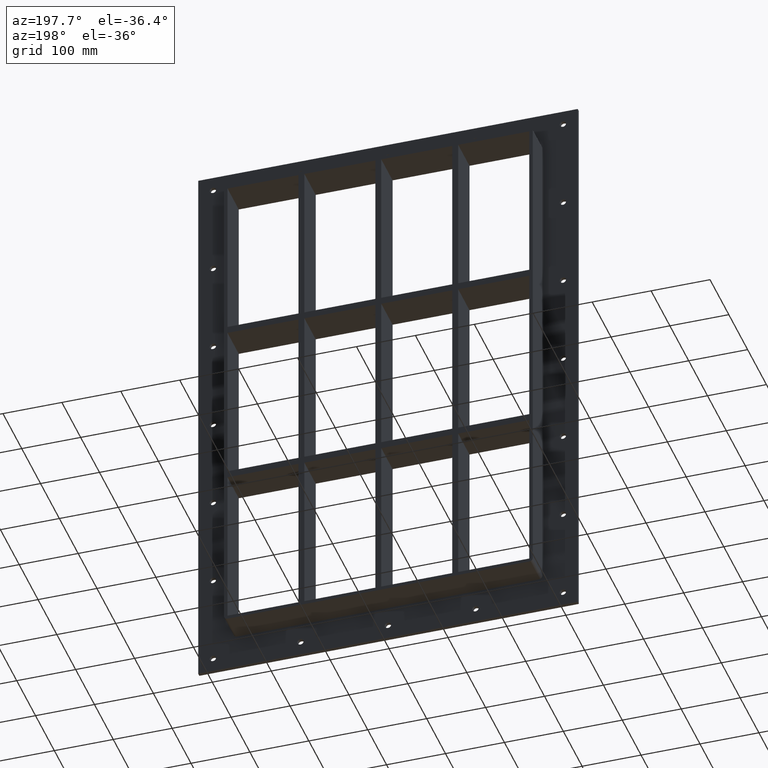
[diagram: clean part render]
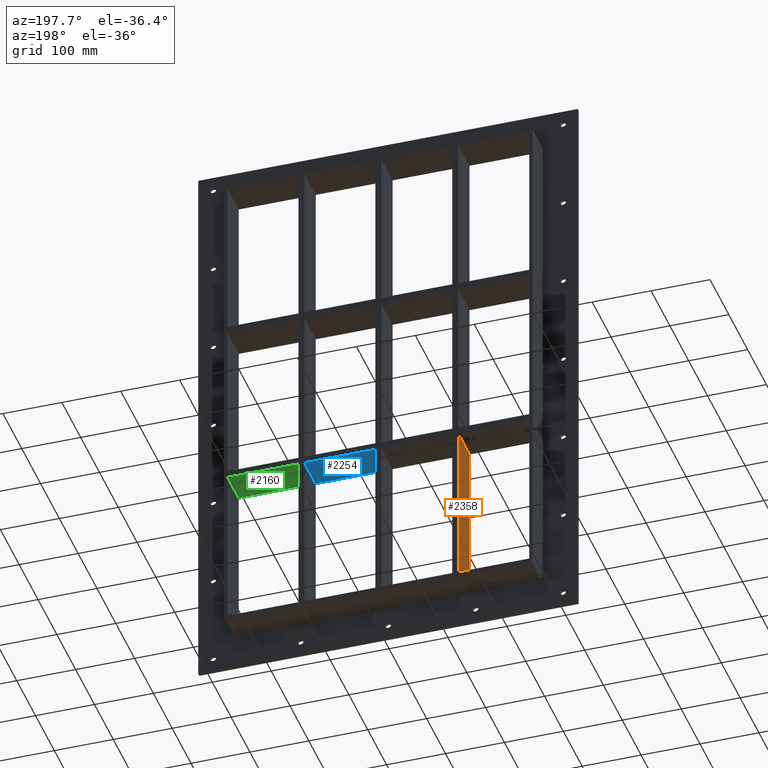
[diagram: same view with three faces highlighted in distinct colors, each labeled with its STEP entity id]
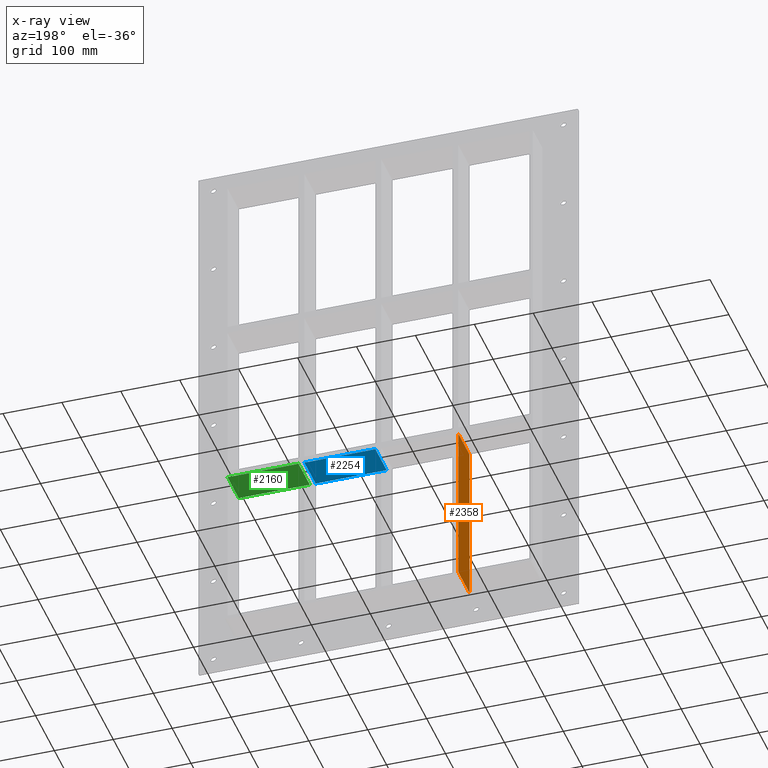
[diagram: x-ray of the same camera — body ghosted, the three highlighted faces saturated]
A machine part, auxiliary view with three faces highlighted in distinct colors.
The next image is the same camera in x-ray (body ghosted, the three faces saturated) — at least one of them is partly hidden behind the body in this view.
Their STEP definitions:

[orange] entity #2358 — the highlighted planar face has unit normal (-1, 0, 0).
#1462=CARTESIAN_POINT('',(-135.50000000000205,57.0,-429.00000000000006));
#1463=VERTEX_POINT('',#1462);
#1470=CARTESIAN_POINT('',(-135.5000000000021,57.0,-151.00000000001017));
#1471=VERTEX_POINT('',#1470);
#1472=CARTESIAN_POINT('',(-135.50000000000205,57.0,-429.00000000000006));
#1473=DIRECTION('',(0.0,0.0,1.0));
#1474=VECTOR('',#1473,277.99999999998988);
#1475=LINE('',#1472,#1474);
#1476=EDGE_CURVE('',#1463,#1471,#1475,.T.);
#2109=CARTESIAN_POINT('',(-135.5000000000021,-3.0,-151.00000000001017));
#2110=VERTEX_POINT('',#2109);
#2119=CARTESIAN_POINT('',(-135.50000000000205,-3.0,-429.00000000000006));
#2120=VERTEX_POINT('',#2119);
#2121=CARTESIAN_POINT('',(-135.50000000000205,-3.0,-429.00000000000006));
#2122=DIRECTION('',(0.0,0.0,1.0));
#2123=VECTOR('',#2122,277.99999999998988);
#2124=LINE('',#2121,#2123);
#2125=EDGE_CURVE('',#2120,#2110,#2124,.T.);
#2260=CARTESIAN_POINT('',(-135.50000000000207,-3.0,-151.00000000001017));
#2261=DIRECTION('',(0.0,1.0,0.0));
#2262=VECTOR('',#2261,60.0);
#2263=LINE('',#2260,#2262);
#2264=EDGE_CURVE('',#2110,#1471,#2263,.T.);
#2342=CARTESIAN_POINT('',(-135.50000000000205,-3.0,-429.00000000000006));
#2343=DIRECTION('',(-1.0,0.0,0.0));
#2344=DIRECTION('',(0.0,0.0,1.0));
#2345=AXIS2_PLACEMENT_3D('',#2342,#2343,#2344);
#2346=PLANE('',#2345);
#2347=ORIENTED_EDGE('',*,*,#2264,.T.);
#2348=ORIENTED_EDGE('',*,*,#1476,.F.);
#2349=CARTESIAN_POINT('',(-135.50000000000205,-3.0,-429.00000000000006));
#2350=DIRECTION('',(0.0,1.0,0.0));
#2351=VECTOR('',#2350,60.000000000000007);
#2352=LINE('',#2349,#2351);
#2353=EDGE_CURVE('',#2120,#1463,#2352,.T.);
#2354=ORIENTED_EDGE('',*,*,#2353,.F.);
#2355=ORIENTED_EDGE('',*,*,#2125,.T.);
#2356=EDGE_LOOP('',(#2347,#2348,#2354,#2355));
#2357=FACE_OUTER_BOUND('',#2356,.T.);
#2358=ADVANCED_FACE('',(#2357),#2346,.T.);

[blue] entity #2254 — the highlighted planar face has unit normal (0, 0, -1).
#1522=CARTESIAN_POINT('',(125.49999999999793,57.0,-151.00000000001017));
#1523=VERTEX_POINT('',#1522);
#1530=CARTESIAN_POINT('',(5.000000000007283,57.0,-151.00000000001017));
#1531=VERTEX_POINT('',#1530);
#1532=CARTESIAN_POINT('',(125.49999999999793,57.0,-151.0000000000102));
#1533=DIRECTION('',(-1.0,0.0,0.0));
#1534=VECTOR('',#1533,120.49999999999065);
#1535=LINE('',#1532,#1534);
#1536=EDGE_CURVE('',#1523,#1531,#1535,.T.);
#1629=CARTESIAN_POINT('',(125.49999999999793,-3.0,-151.00000000001017));
#1630=VERTEX_POINT('',#1629);
#1631=CARTESIAN_POINT('',(125.49999999999793,57.0,-151.0000000000102));
#1632=DIRECTION('',(0.0,-1.0,0.0));
#1633=VECTOR('',#1632,60.0);
#1634=LINE('',#1631,#1633);
#1635=EDGE_CURVE('',#1523,#1630,#1634,.T.);
#1794=CARTESIAN_POINT('',(5.000000000007283,-3.0,-151.00000000001017));
#1795=VERTEX_POINT('',#1794);
#1796=CARTESIAN_POINT('',(5.000000000007283,-3.0,-151.00000000001017));
#1797=DIRECTION('',(0.0,1.0,0.0));
#1798=VECTOR('',#1797,60.0);
#1799=LINE('',#1796,#1798);
#1800=EDGE_CURVE('',#1795,#1531,#1799,.T.);
#2064=CARTESIAN_POINT('',(125.49999999999793,-3.0,-151.0000000000102));
#2065=DIRECTION('',(-1.0,0.0,0.0));
#2066=VECTOR('',#2065,120.49999999999065);
#2067=LINE('',#2064,#2066);
#2068=EDGE_CURVE('',#1630,#1795,#2067,.T.);
#2243=CARTESIAN_POINT('',(256.00000000000364,-3.0,-151.0000000000102));
#2244=DIRECTION('',(0.0,0.0,-1.0));
#2245=DIRECTION('',(-1.0,0.0,0.0));
#2246=AXIS2_PLACEMENT_3D('',#2243,#2244,#2245);
#2247=PLANE('',#2246);
#2248=ORIENTED_EDGE('',*,*,#1635,.T.);
#2249=ORIENTED_EDGE('',*,*,#2068,.T.);
#2250=ORIENTED_EDGE('',*,*,#1800,.T.);
#2251=ORIENTED_EDGE('',*,*,#1536,.F.);
#2252=EDGE_LOOP('',(#2248,#2249,#2250,#2251));
#2253=FACE_OUTER_BOUND('',#2252,.T.);
#2254=ADVANCED_FACE('',(#2253),#2247,.T.);

[green] entity #2160 — the highlighted planar face has unit normal (0, 0, -1).
#1575=CARTESIAN_POINT('',(256.00000000000364,57.0,-151.0000000000102));
#1576=VERTEX_POINT('',#1575);
#1583=CARTESIAN_POINT('',(135.50000000000728,57.0,-151.00000000001017));
#1584=VERTEX_POINT('',#1583);
#1585=CARTESIAN_POINT('',(256.00000000000364,57.0,-151.0000000000102));
#1586=DIRECTION('',(-1.0,0.0,0.0));
#1587=VECTOR('',#1586,120.49999999999636);
#1588=LINE('',#1585,#1587);
#1589=EDGE_CURVE('',#1576,#1584,#1588,.T.);
#1684=CARTESIAN_POINT('',(135.50000000000728,-3.0,-151.00000000001017));
#1685=VERTEX_POINT('',#1684);
#1686=CARTESIAN_POINT('',(135.50000000000728,-3.0,-151.00000000001017));
#1687=DIRECTION('',(0.0,1.0,0.0));
#1688=VECTOR('',#1687,60.0);
#1689=LINE('',#1686,#1688);
#1690=EDGE_CURVE('',#1685,#1584,#1689,.T.);
#2092=CARTESIAN_POINT('',(256.00000000000364,-3.0,-151.0000000000102));
#2093=VERTEX_POINT('',#2092);
#2094=CARTESIAN_POINT('',(256.00000000000364,-3.0,-151.0000000000102));
#2095=DIRECTION('',(-1.0,0.0,0.0));
#2096=VECTOR('',#2095,120.49999999999636);
#2097=LINE('',#2094,#2096);
#2098=EDGE_CURVE('',#2093,#1685,#2097,.T.);
#2144=CARTESIAN_POINT('',(256.00000000000364,-3.0,-151.0000000000102));
#2145=DIRECTION('',(0.0,0.0,-1.0));
#2146=DIRECTION('',(-1.0,0.0,0.0));
#2147=AXIS2_PLACEMENT_3D('',#2144,#2145,#2146);
#2148=PLANE('',#2147);
#2149=ORIENTED_EDGE('',*,*,#1690,.T.);
#2150=ORIENTED_EDGE('',*,*,#1589,.F.);
#2151=CARTESIAN_POINT('',(256.0,-3.0,-151.00000000001017));
#2152=DIRECTION('',(0.0,1.0,0.0));
#2153=VECTOR('',#2152,60.000000000000007);
#2154=LINE('',#2151,#2153);
#2155=EDGE_CURVE('',#2093,#1576,#2154,.T.);
#2156=ORIENTED_EDGE('',*,*,#2155,.F.);
#2157=ORIENTED_EDGE('',*,*,#2098,.T.);
#2158=EDGE_LOOP('',(#2149,#2150,#2156,#2157));
#2159=FACE_OUTER_BOUND('',#2158,.T.);
#2160=ADVANCED_FACE('',(#2159),#2148,.T.);